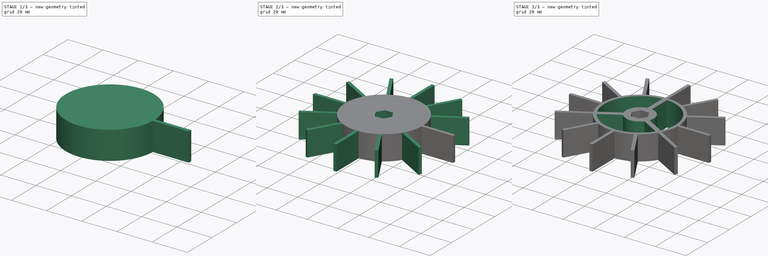
[diagram: build sequence overview — one tinted view per stage of 3, left to right]
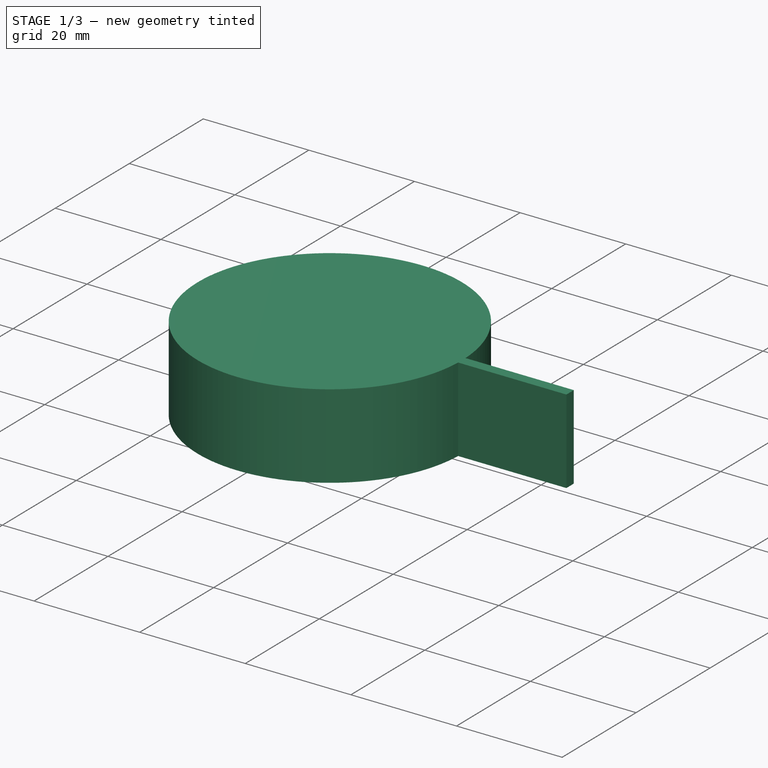
[diagram: stage 1 of 3 — iso view after this stage's code; geometry added in this stage tinted green]
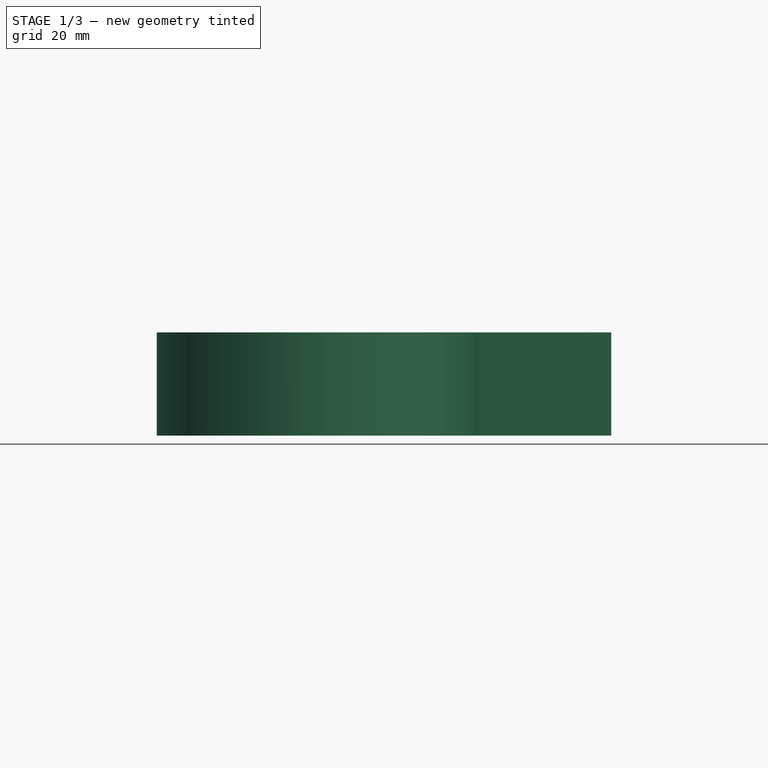
[diagram: stage 1 of 3 — front view after this stage's code; geometry added in this stage tinted green]
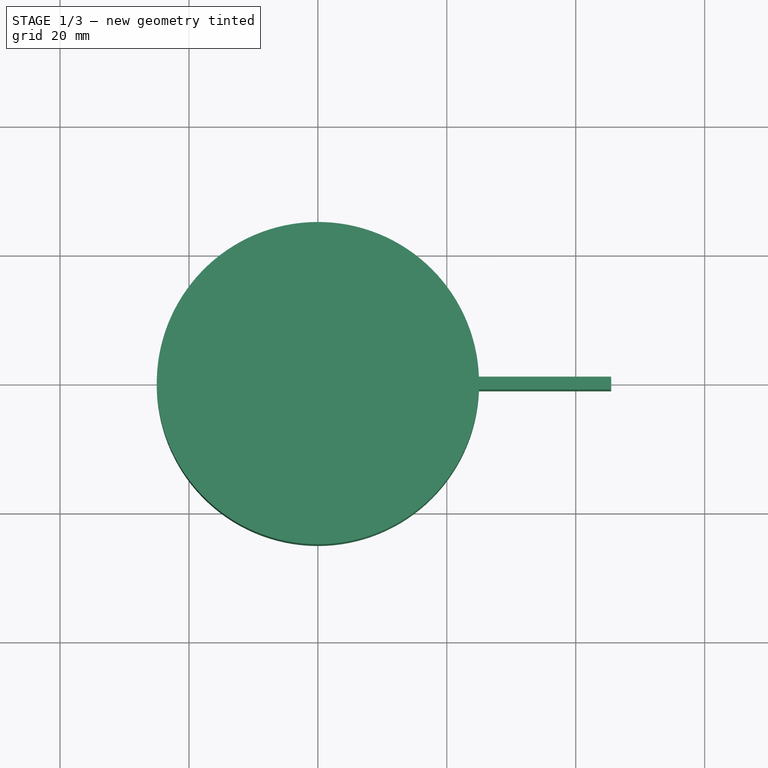
[diagram: stage 1 of 3 — top view after this stage's code; geometry added in this stage tinted green]
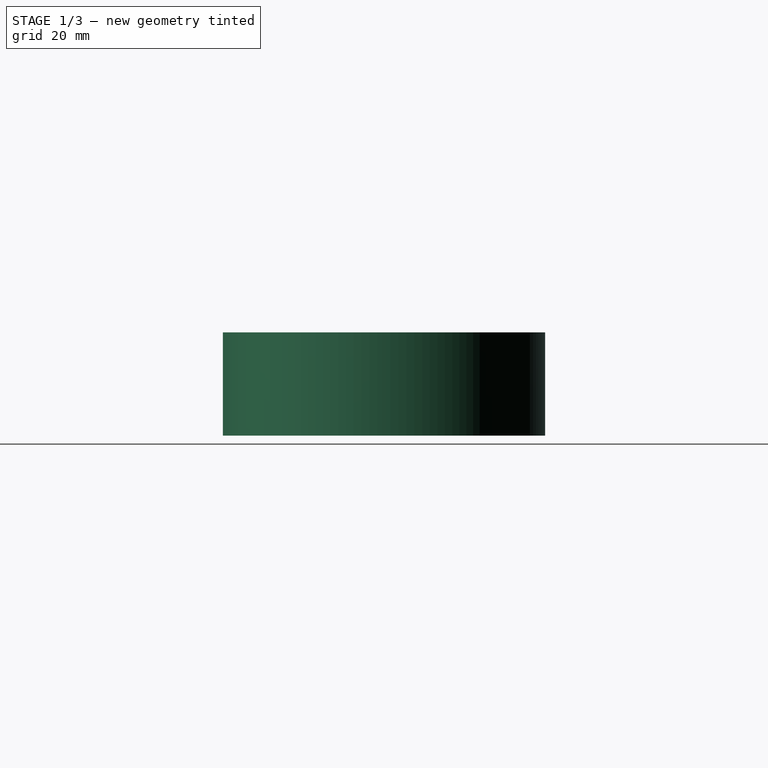
[diagram: stage 1 of 3 — right view after this stage's code; geometry added in this stage tinted green]
FCSTD DOCUMENT  (FreeCAD 0.20R29603 (Git))
Label: Spinner
License: All rights reserved
LicenseURL: http://en.wikipedia.org/wiki/All_rights_reserved
objects: Sketcher::SketchObject×6, PartDesign::Pad×2, PartDesign::PolarPattern×2, PartDesign::Pocket×2, PartDesign::Body×1
note: 17 computed .brp shape members not serialized (recipe doc carries the construction recipe); baked Part::Feature solids carry a one-line shape summary decoded from their .brp

FEATURE [Sketcher::SketchObject] Sketch
  FullyConstrained = true
  MapMode = 5
  Support = -> [XY_Plane]
  sketch-geometry (1):
    g0: Circle CenterX=0 CenterY=0 CenterZ=0 NormalX=0 NormalY=0 NormalZ=1 AngleXU=0 Radius=25
  constraints (2):
    c: Coincident(g0,g-1)
    c: Diameter(g0) = 50
FEATURE [PartDesign::Pad] Pad
  Direction = (0,0,1)
  Length = 16
  Length2 = 10
  Profile = -> Sketch
  ReferenceAxis = -> Sketch [N_Axis]
  Type = 0
FEATURE [Sketcher::SketchObject] Sketch001
  FullyConstrained = true
  MapMode = 5
  Support = -> [XY_Plane]
  sketch-geometry (7):
    g0: ArcOfCircle CenterX=0 CenterY=0 CenterZ=0 NormalX=0 NormalY=0 NormalZ=1 AngleXU=0 Radius=46 StartAngle=6.07375 EndAngle=6.49262
    g1: LineSegment StartX=44.9948 StartY=9.56394 StartZ=0 EndX=44.9948 EndY=-9.56394 EndZ=0
    g2: ArcOfCircle CenterX=0 CenterY=0 CenterZ=0 NormalX=0 NormalY=0 NormalZ=1 AngleXU=0 Radius=25 StartAngle=6.07375 EndAngle=6.49262
    g3: LineSegment StartX=24.4537 StartY=5.19779 StartZ=0 EndX=44.9948 EndY=9.56394 EndZ=0
    g4: LineSegment StartX=24.4537 StartY=-5.19779 StartZ=0 EndX=44.9948 EndY=-9.56394 EndZ=0
    g5: LineSegment StartX=24.4537 StartY=5.19779 StartZ=0 EndX=24.4537 EndY=-5.19779 EndZ=0
    g6: LineSegment StartX=0 StartY=0 StartZ=0 EndX=24.4537 EndY=5.19779 EndZ=0
  constraints (18):
    c: Coincident(g0,g-1)
    c: Radius(g0) = 46
    c: Coincident(g1,g0)
    c: Coincident(g1,g0)
    c: Vertical(g1)
    c: Angle(g0) = 0.418879
    c: Coincident(g2,g0)
    c: Coincident(g3,g2)
    c: Coincident(g3,g0)
    c: Coincident(g4,g2)
    c: Coincident(g4,g0)
    c: Angle(g2) = 0.418879
    c: Coincident(g5,g2)
    c: Coincident(g5,g2)
    c: Perpendicular(g-1,g5)
    c: Coincident(g6,g0)
    c: Coincident(g6,g2)
    c: Distance(g6) = 25
FEATURE [Sketcher::SketchObject] Sketch002
  FullyConstrained = false
  MapMode = 5
  Support = -> [XY_Plane]
  sketch-geometry (4):
    g0: LineSegment StartX=15.2835 StartY=1 StartZ=0 EndX=45.489 EndY=1 EndZ=0
    g1: LineSegment StartX=15.2835 StartY=-1 StartZ=0 EndX=45.489 EndY=-1 EndZ=0
    g2: LineSegment StartX=15.2835 StartY=1 StartZ=0 EndX=15.2835 EndY=-1 EndZ=0
    g3: ArcOfCircle CenterX=0 CenterY=0 CenterZ=0 NormalX=0 NormalY=0 NormalZ=1 AngleXU=0 Radius=45.5 StartAngle=6.26121 EndAngle=6.30517
  constraints (11):
    c: Horizontal(g0)
    c: Horizontal(g1)
    c: DistanceY(g1,g0) = 2
    c: DistanceY(g-1,g0) = 1
    c: Coincident(g2,g0)
    c: Coincident(g2,g1)
    c: Vertical(g2)
    c: Coincident(g3,g-1)
    c: Coincident(g3,g0)
    c: Coincident(g3,g1)
    c: Radius(g3) = 45.5
FEATURE [PartDesign::Pad] Pad001
  BaseFeature = -> Pad
  Direction = (0,0,1)
  Length = 16
  Length2 = 10
  Profile = -> Sketch002
  ReferenceAxis = -> Sketch002 [N_Axis]
  Type = 0
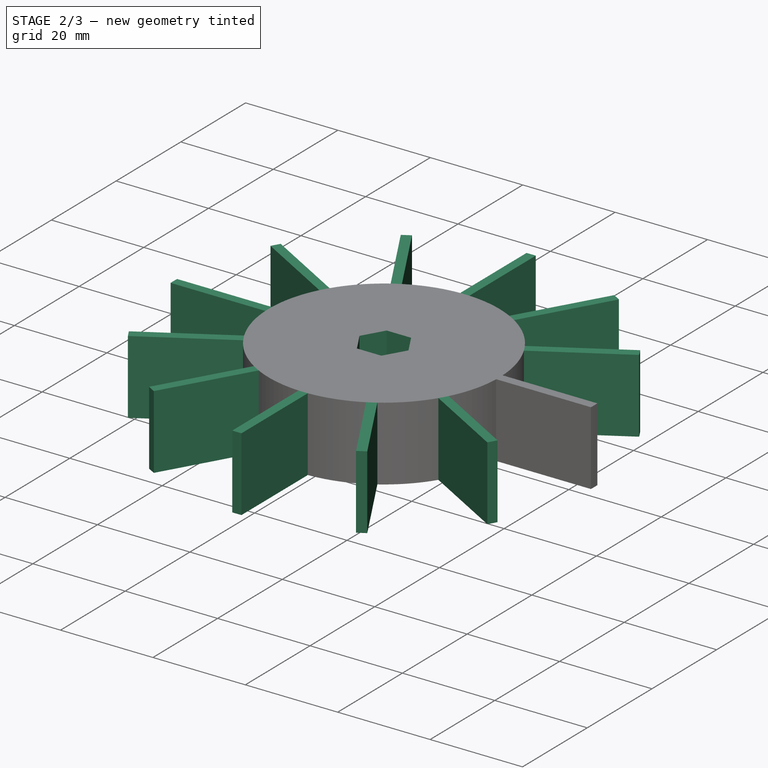
[diagram: stage 2 of 3 — iso view after this stage's code; geometry added in this stage tinted green]
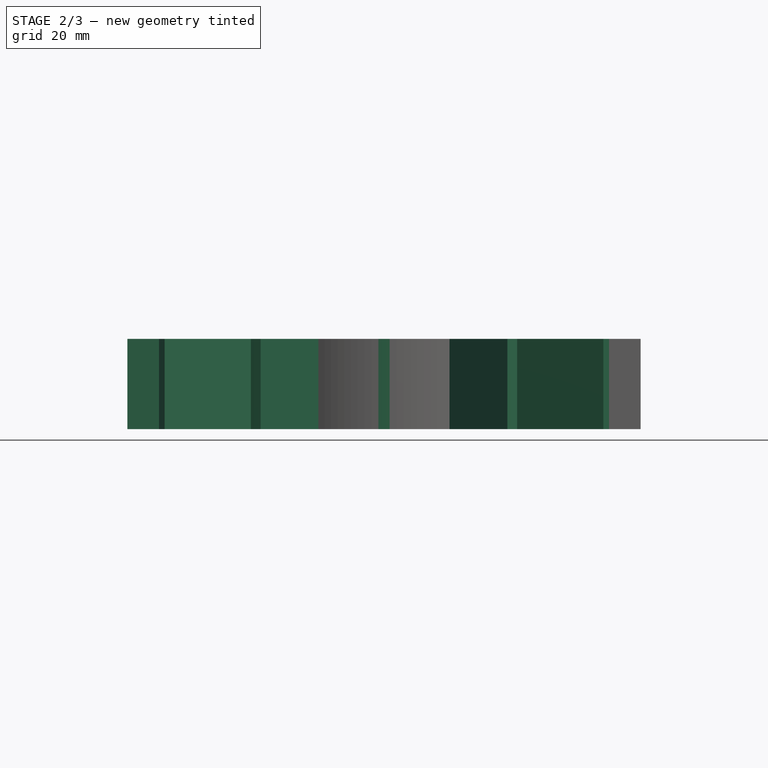
[diagram: stage 2 of 3 — front view after this stage's code; geometry added in this stage tinted green]
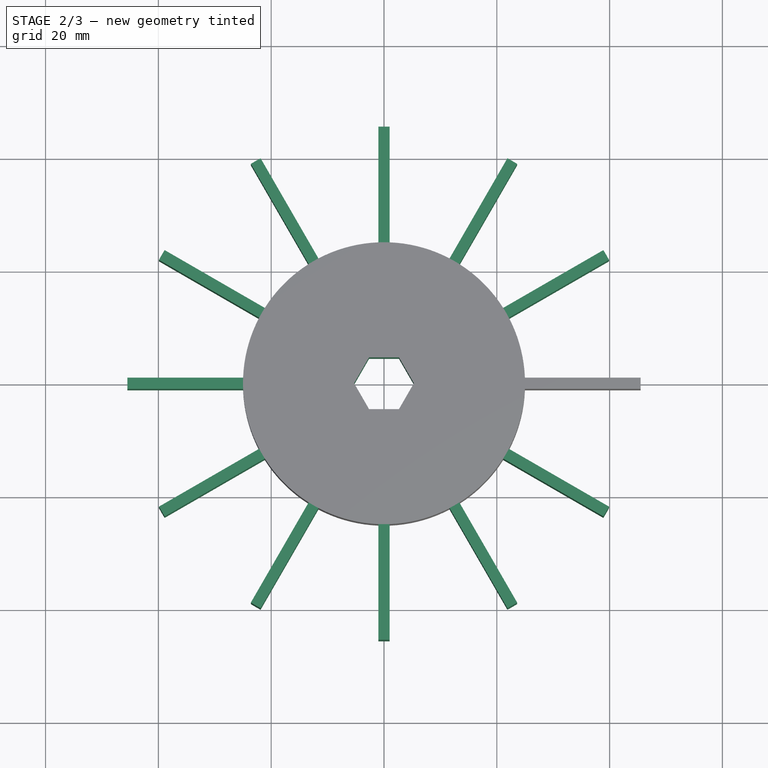
[diagram: stage 2 of 3 — top view after this stage's code; geometry added in this stage tinted green]
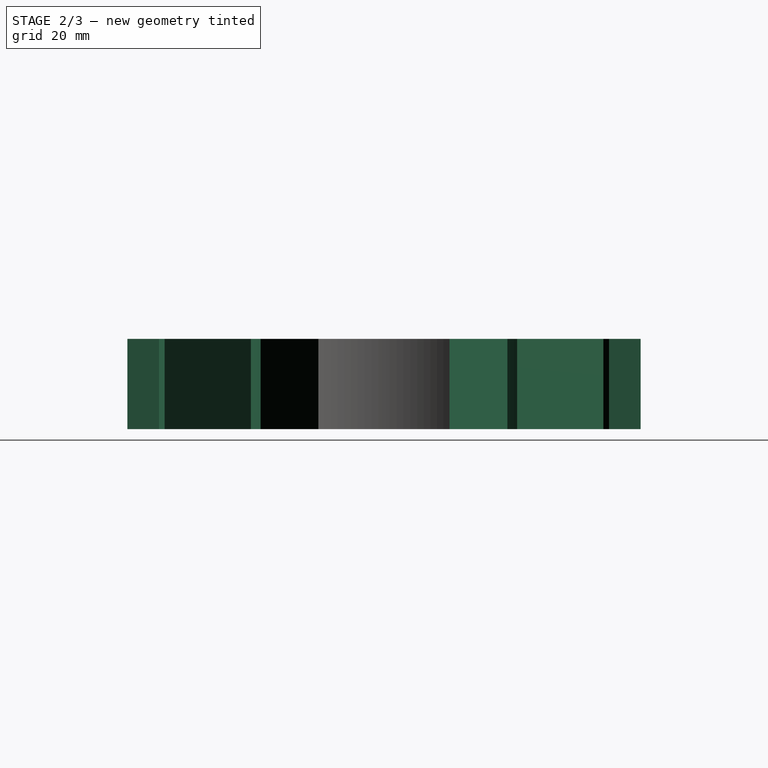
[diagram: stage 2 of 3 — right view after this stage's code; geometry added in this stage tinted green]
FEATURE [PartDesign::PolarPattern] PolarPattern
  Angle = 360
  Axis = -> Sketch002 [N_Axis]
  BaseFeature = -> Pad001
  Occurrences = 12
  Originals = -> [Pad001]
FEATURE [Sketcher::SketchObject] Sketch003
  FullyConstrained = true
  MapMode = 5
  Support = -> [XY_Plane]
  sketch-geometry (7):
    g0: LineSegment StartX=-5.3 StartY=0 StartZ=0 EndX=-2.65 EndY=-4.58993 EndZ=0
    g1: LineSegment StartX=-2.65 StartY=-4.58993 StartZ=0 EndX=2.65 EndY=-4.58993 EndZ=0
    g2: LineSegment StartX=2.65 StartY=-4.58993 StartZ=0 EndX=5.3 EndY=-6.863e-12 EndZ=0
    g3: LineSegment StartX=5.3 StartY=-6.8626e-12 StartZ=0 EndX=2.65 EndY=4.58993 EndZ=0
    g4: LineSegment StartX=2.65 StartY=4.58993 StartZ=0 EndX=-2.65 EndY=4.58993 EndZ=0
    g5: LineSegment StartX=-2.65 StartY=4.58993 StartZ=0 EndX=-5.3 EndY=0 EndZ=0
    g6: Circle CenterX=0 CenterY=0 CenterZ=0 NormalX=0 NormalY=0 NormalZ=1 AngleXU=0 Radius=5.3
  constraints (16):
    c: Coincident(g0,g1)
    c: Coincident(g1,g2)
    c: Coincident(g2,g3)
    c: Coincident(g3,g4)
    c: Coincident(g4,g5)
    c: Coincident(g5,g0)
    c: Equal(g0, g1-g5) x5
    c: PointOnObject(g0,g6)
    c: PointOnObject(g1,g6)
    c: PointOnObject(g2,g6)
    c: PointOnObject(g3,g6)
    c: PointOnObject(g4,g6)
    c: PointOnObject(g5,g6)
    c: Coincident(g6,g-1)
    c: PointOnObject(g5,g-1)
    c: Diameter(g6) = 10.6
FEATURE [PartDesign::Pocket] Pocket
  BaseFeature = -> PolarPattern
  Direction = (0,0,-1)
  Length = 5
  Length2 = 5
  Profile = -> Sketch003
  ReferenceAxis = -> Sketch003 [N_Axis]
  Reversed = true
  Type = 1
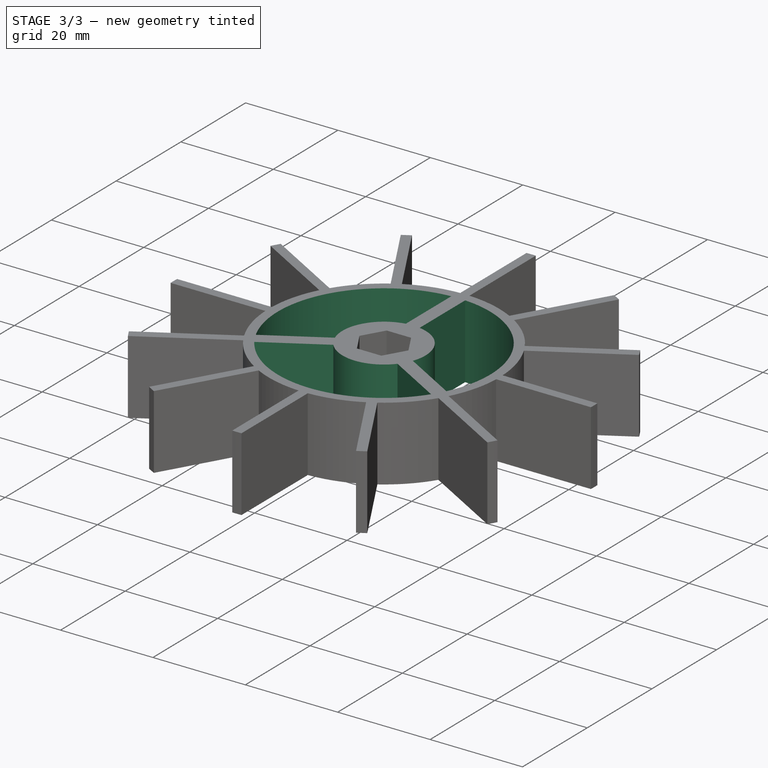
[diagram: stage 3 of 3 — iso view after this stage's code; geometry added in this stage tinted green]
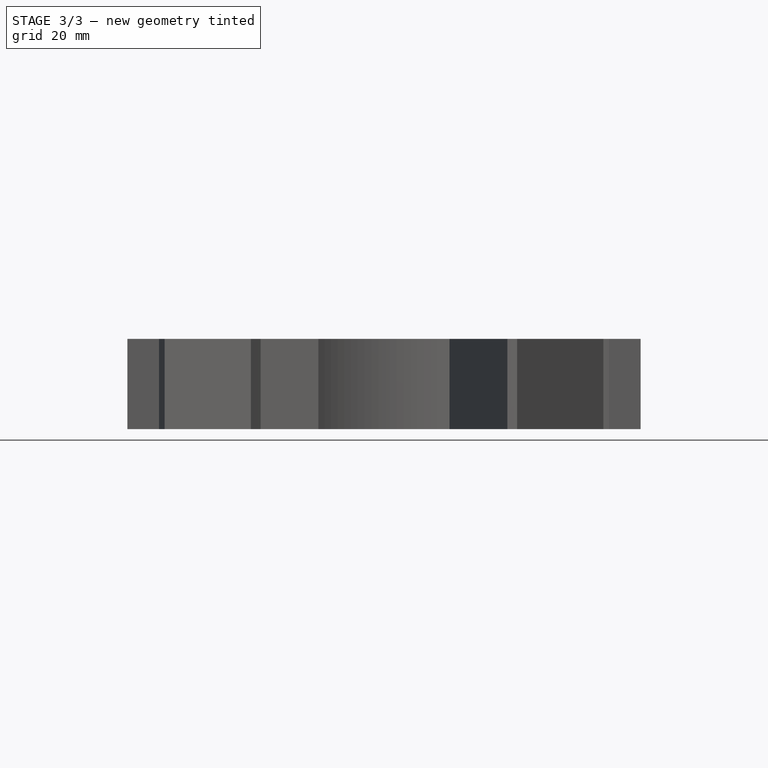
[diagram: stage 3 of 3 — front view after this stage's code; geometry added in this stage tinted green]
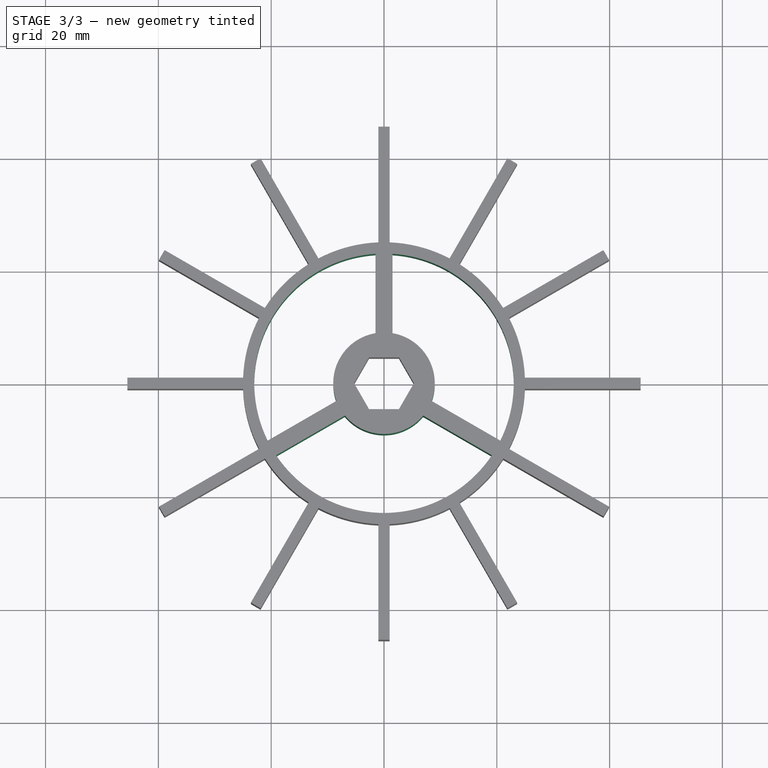
[diagram: stage 3 of 3 — top view after this stage's code; geometry added in this stage tinted green]
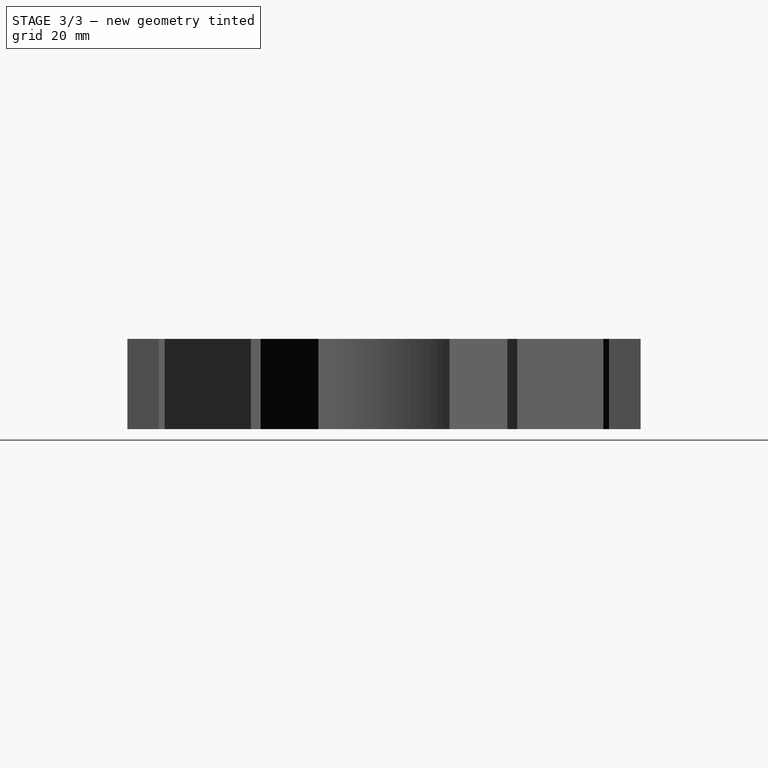
[diagram: stage 3 of 3 — right view after this stage's code; geometry added in this stage tinted green]
FEATURE [Sketcher::SketchObject] Sketch004
  FullyConstrained = false
  MapMode = 5
  Support = -> [XY_Plane]
  sketch-geometry (11):
    g0: LineSegment StartX=22.9783 StartY=1 StartZ=0 EndX=8.94427 EndY=1 EndZ=0
    g1: LineSegment StartX=20.4097 StartY=10.6039 StartZ=0 EndX=8.53223 EndY=2.86375 EndZ=0
    g2: Circle CenterX=0 CenterY=0 CenterZ=0 NormalX=0 NormalY=0 NormalZ=1 AngleXU=0 Radius=9
    g3: ArcOfCircle CenterX=0 CenterY=0 CenterZ=0 NormalX=0 NormalY=0 NormalZ=1 AngleXU=0 Radius=9 StartAngle=0.111341 EndAngle=0.323824
    g4: ArcOfCircle CenterX=0 CenterY=0 CenterZ=0 NormalX=0 NormalY=0 NormalZ=1 AngleXU=0 Radius=23 StartAngle=0.043492 EndAngle=0.479168
    g5: LineSegment StartX=-1.5 StartY=22.951 StartZ=0 EndX=-1.5 EndY=8.87412 EndZ=0
    g6: ArcOfCircle CenterX=0 CenterY=0 CenterZ=0 NormalX=0 NormalY=0 NormalZ=1 AngleXU=0 Radius=23 StartAngle=1.63606 EndAngle=3.59993
    g7: LineSegment StartX=0 StartY=0 StartZ=0 EndX=-19.8762 EndY=-11.4755 EndZ=0
    g8: LineSegment StartX=-8.43521 StartY=-3.13802 StartZ=0 EndX=-20.6262 EndY=-10.1765 EndZ=0
    g9: LineSegment StartX=-20.6262 StartY=-10.1765 StartZ=0 EndX=-19.8762 EndY=-11.4755 EndZ=0
    g10: ArcOfCircle CenterX=0 CenterY=0 CenterZ=0 NormalX=0 NormalY=0 NormalZ=1 AngleXU=0 Radius=9 StartAngle=1.73824 EndAngle=3.49774
  constraints (29):
    c: Horizontal(g0)
    c: Coincident(g2,g-1)
    c: PointOnObject(g0,g2)
    c: Diameter(g2) = 18
    c: Coincident(g3,g2)
    c: Coincident(g3,g1)
    c: Coincident(g3,g0)
    c: Coincident(g4,g3)
    c: Coincident(g4,g1)
    c: Coincident(g4,g0)
    c: Radius(g4) = 23
    c: DistanceY(g3,g0) = 1
    c: PointOnObject(g5,g2)
    c: Vertical(g5)
    c: DistanceX(g5,g2) = 1.5
    c: Coincident(g6,g2)
    c: Coincident(g6,g5)
    c: Coincident(g7,g6)
    c: Angle(g-2,g7) = 2.0944
    c: Parallel(g8,g7)
    c: Coincident(g9,g8)
    c: Coincident(g9,g7)
    c: Perpendicular(g8,g9)
    c: Coincident(g6,g8)
    c: Radius(g6) = 23
    c: Coincident(g10,g6)
    c: Coincident(g10,g5)
    c: Coincident(g10,g8)
    c: Distance(g9) = 1.5
FEATURE [PartDesign::Pocket] Pocket001
  BaseFeature = -> Pocket
  Direction = (0,0,-1)
  Length = 5
  Length2 = 5
  Profile = -> Sketch004
  ReferenceAxis = -> Sketch004 [N_Axis]
  Reversed = true
  Type = 1
FEATURE [PartDesign::PolarPattern] PolarPattern001
  Angle = 360
  Axis = -> Sketch004 [N_Axis]
  BaseFeature = -> Pocket001
  Occurrences = 3
  Originals = -> [Pocket001]
FEATURE [Sketcher::SketchObject] Sketch005
  FullyConstrained = false
  MapMode = 5
  Placement = pos=(6.1596e-12,4.58993,0) rot=(1,0,0;1.5708rad)
  Support = -> [PolarPattern001]
  sketch-geometry (6):
    g0: Circle CenterX=0 CenterY=0 CenterZ=0 NormalX=0 NormalY=0 NormalZ=1 AngleXU=0 Radius=45.7622
    g1: LineSegment StartX=0 StartY=0 StartZ=0 EndX=-45.7622 EndY=0 EndZ=0
    g2: LineSegment StartX=0 StartY=0 StartZ=0 EndX=-39.6207 EndY=22.8993 EndZ=0
    g3: LineSegment StartX=0 StartY=0 StartZ=0 EndX=-22.8826 EndY=39.6304 EndZ=0
    g4: LineSegment StartX=-22.8826 StartY=39.6304 StartZ=0 EndX=-39.6207 EndY=22.8993 EndZ=0
    g5: LineSegment StartX=-21.8021 StartY=12.6008 StartZ=0 EndX=-12.4979 EndY=21.6452 EndZ=0
  constraints (12):
    c: Coincident(g0,g-1)
    c: Coincident(g1,g0)
    c: PointOnObject(g1,g0)
    c: Horizontal(g1)
    c: Coincident(g2,g0)
    c: PointOnObject(g2,g0)
    c: Coincident(g3,g0)
    c: PointOnObject(g3,g0)
    c: Coincident(g4,g3)
    c: Coincident(g4,g2)
    c: PointOnObject(g5,g2)
    c: PointOnObject(g5,g3)
FEATURE [PartDesign::Body] Body
  Group = -> [Sketch,Pad,Sketch001,Sketch002,Pad001,PolarPattern,Sketch003,Pocket,Sketch004,Pocket001,PolarPattern001,Sketch005]
  Origin = -> Origin
  Tip = -> PolarPattern001
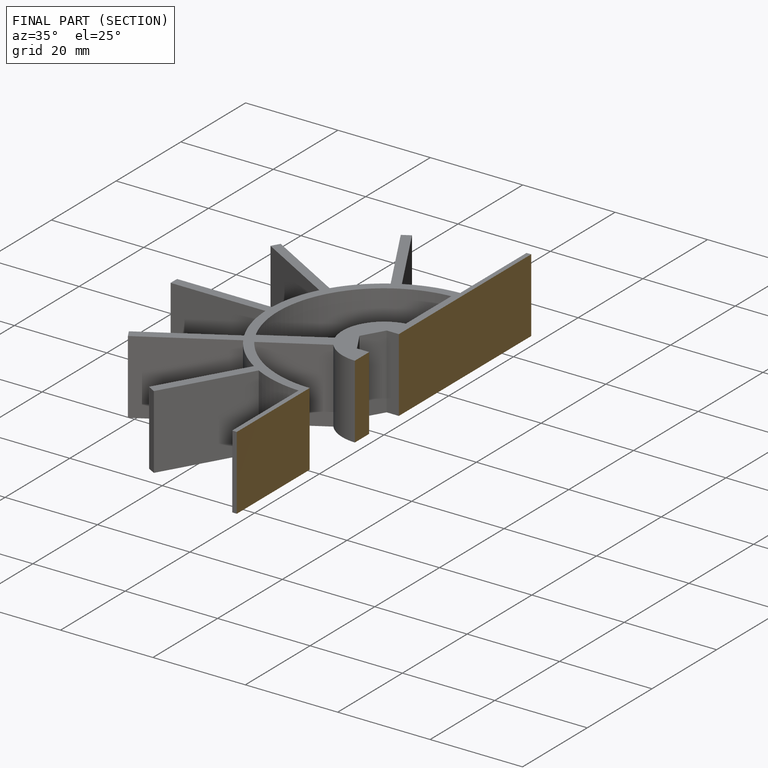
[diagram: finished part — half-section view (interior)]
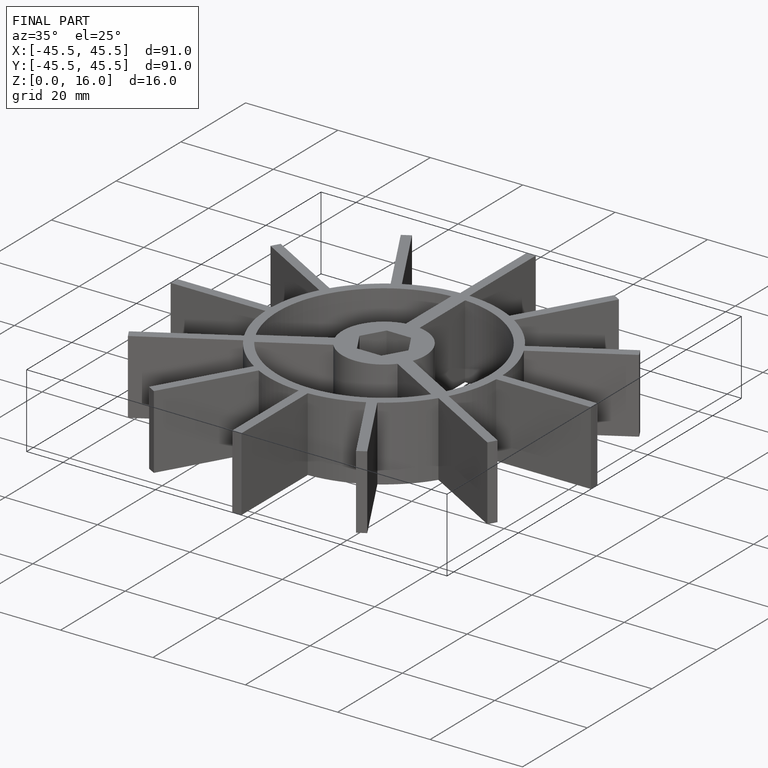
[diagram: finished part — iso view with bounding-box wireframe]
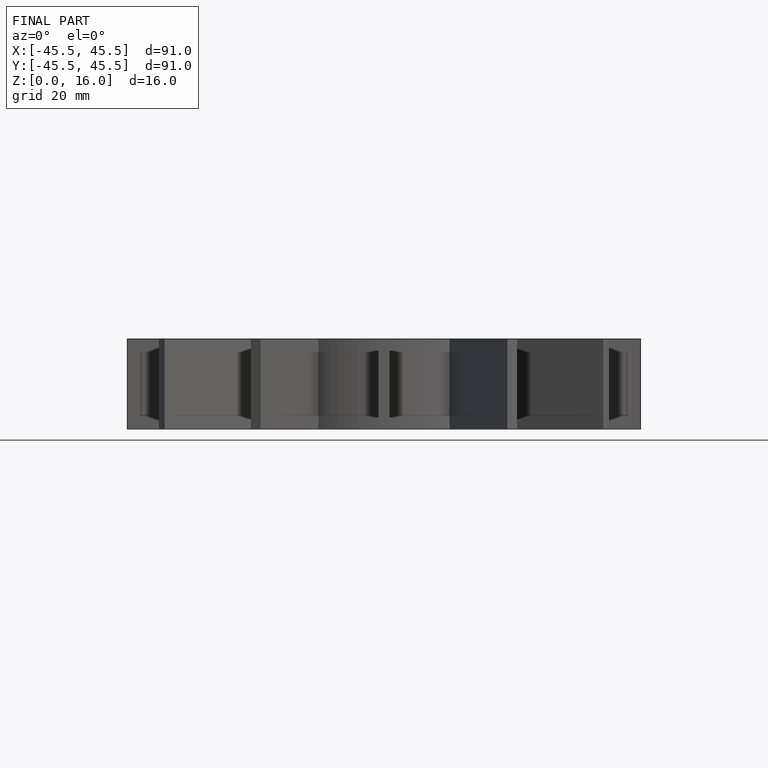
[diagram: finished part — front view with bounding-box wireframe]
